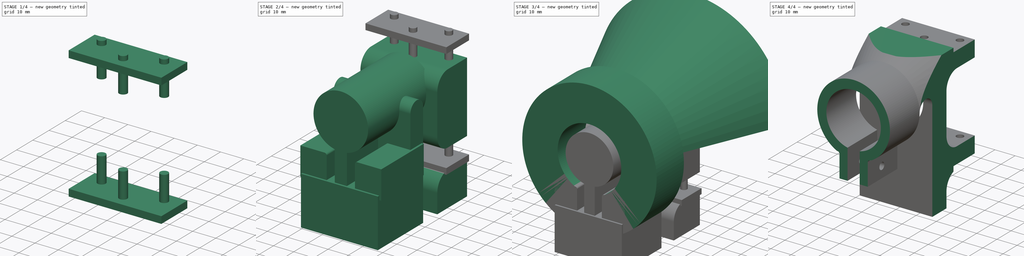
[diagram: build sequence overview — one tinted view per stage of 4, left to right]
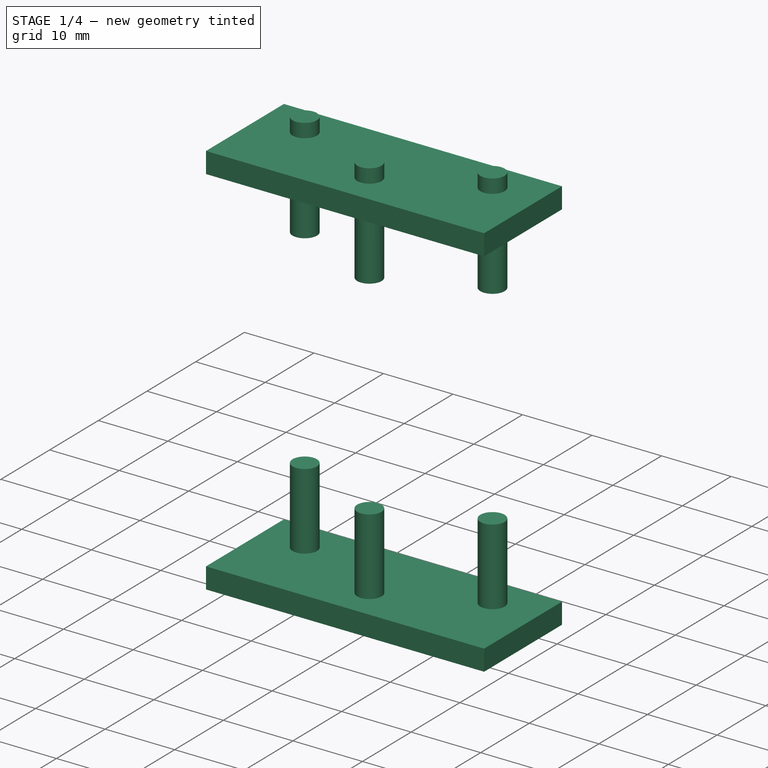
[diagram: stage 1 of 4 — iso view after this stage's code; geometry added in this stage tinted green]
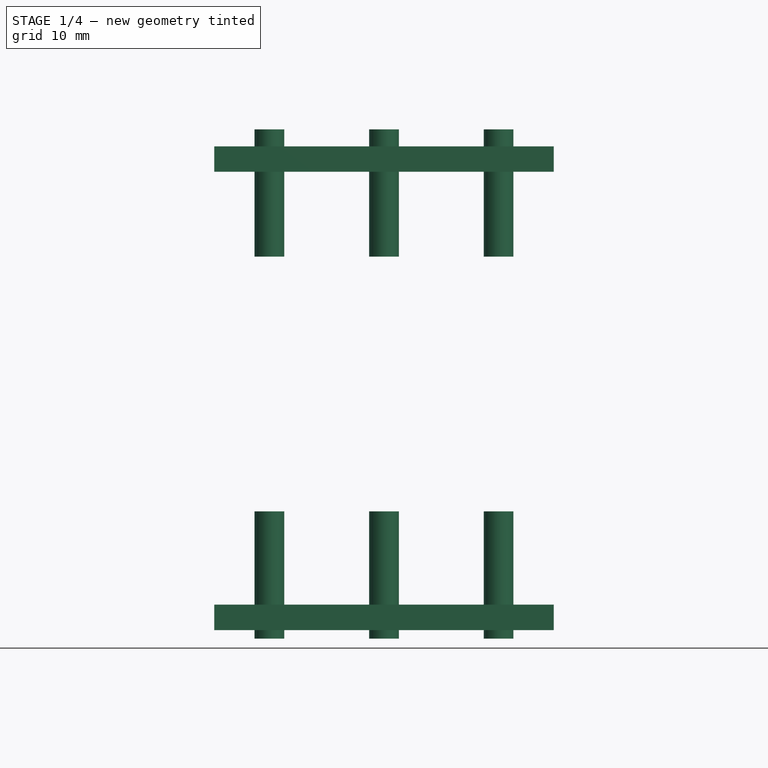
[diagram: stage 1 of 4 — front view after this stage's code; geometry added in this stage tinted green]
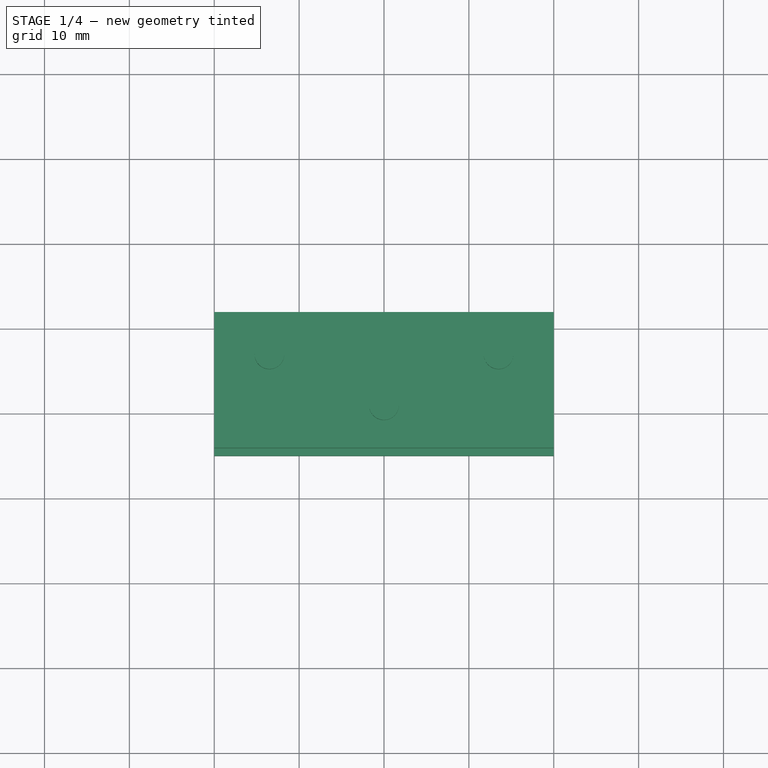
[diagram: stage 1 of 4 — top view after this stage's code; geometry added in this stage tinted green]
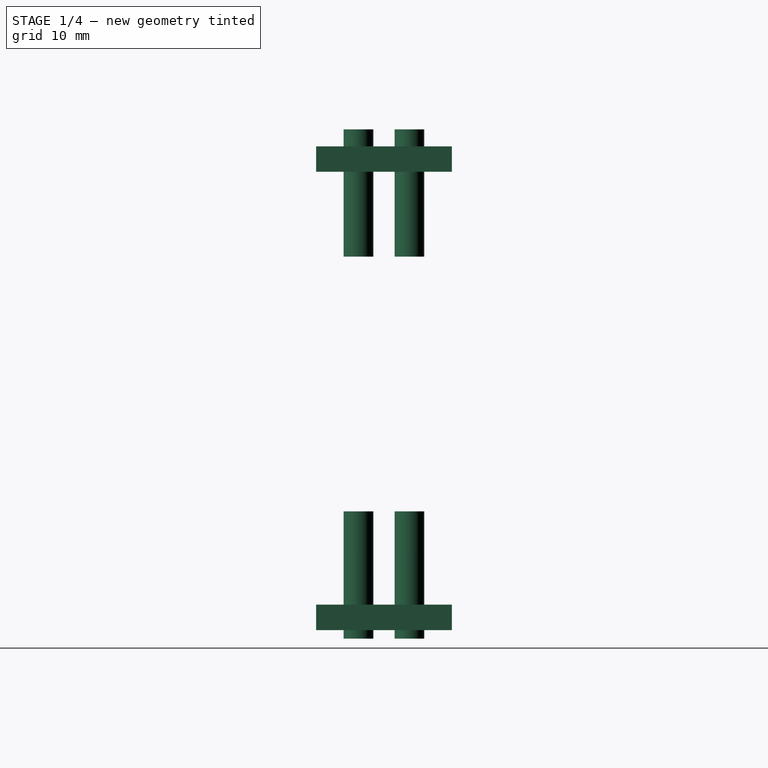
[diagram: stage 1 of 4 — right view after this stage's code; geometry added in this stage tinted green]
FCSTD DOCUMENT  (FreeCAD 0.16R6698 (Git))
Label: body-bracket2
License: All rights reserved
LicenseURL: http://en.wikipedia.org/wiki/All_rights_reserved
objects: Sketcher::SketchObject×9, Part::Extrusion×7, Part::Sweep×2, Part::MultiFuse×2, Part::Cut×2, Part::Box×1
note: 23 computed .brp shape members not serialized (recipe doc carries the construction recipe); baked Part::Feature solids carry a one-line shape summary decoded from their .brp

FEATURE [Sketcher::SketchObject] Sketch020
  sketch-geometry (4):
    g0: LineSegment StartX=-20 StartY=61 StartZ=0 EndX=20 EndY=61 EndZ=0
    g1: LineSegment StartX=20 StartY=61 StartZ=0 EndX=20 EndY=45 EndZ=0
    g2: LineSegment StartX=20 StartY=45 StartZ=0 EndX=-20 EndY=45 EndZ=0
    g3: LineSegment StartX=-20 StartY=45 StartZ=0 EndX=-20 EndY=61 EndZ=0
  constraints (12):
    c: Coincident(g0,g1)
    c: Coincident(g1,g2)
    c: Coincident(g2,g3)
    c: Coincident(g3,g0)
    c: Horizontal(g0)
    c: Horizontal(g2)
    c: Vertical(g1)
    c: Vertical(g3)
    c: DistanceY(g-1,g1) = 45
    c: Symmetric(g1,g2,g-2)
    c: DistanceY(g-1,g0) = 61
    c: DistanceX(g0,g0) = 40
FEATURE [Part::Extrusion] Extrude003
  Base = -> Sketch020
  Dir = (0,0,3)
  Placement = pos=(0,0,68) rot=(0,0,1;0rad)
  Solid = true
FEATURE [Part::Extrusion] Extrude004
  Base = -> Sketch020
  Dir = (0,0,3)
  Placement = pos=(0,0,14) rot=(0,0,1;0rad)
  Solid = true
FEATURE [Sketcher::SketchObject] Sketch021
  sketch-geometry (6):
    g0: Circle CenterX=-13.5 CenterY=56 CenterZ=0 NormalX=0 NormalY=0 NormalZ=1 Radius=1.75
    g1: Circle CenterX=13.5 CenterY=56 CenterZ=0 NormalX=0 NormalY=0 NormalZ=1 Radius=1.75
    g2: Circle CenterX=0 CenterY=50 CenterZ=0 NormalX=0 NormalY=0 NormalZ=1 Radius=1.75
    g3: LineSegment [constr] StartX=-13.5 StartY=56 StartZ=0 EndX=0 EndY=50 EndZ=0
    g4: LineSegment [constr] StartX=0 StartY=50 StartZ=0 EndX=13.5 EndY=56 EndZ=0
    g5: LineSegment [constr] StartX=13.5 StartY=56 StartZ=0 EndX=-13.5 EndY=56 EndZ=0
  constraints (15):
    c: Radius(g2) = 1.75
    c: PointOnObject(g2,g-2)
    c: Coincident(g3,g0)
    c: Coincident(g3,g2)
    c: Coincident(g3,g4)
    c: Coincident(g4,g1)
    c: Coincident(g4,g5)
    c: Horizontal(g5)
    c: Coincident(g5,g0)
    c: Equal(g3,g4)
    c: DistanceY(g2,g1) = 6
    c: DistanceX(g0,g1) = 27
    c: DistanceY(g-1,g1) = 56
    c: Equal(g0,g2)
    c: Equal(g2,g1)
FEATURE [Part::Extrusion] Extrude005
  Base = -> Sketch021
  Dir = (0,0,15)
  Placement = pos=(0,0,13) rot=(0,0,1;0rad)
  Solid = true
FEATURE [Part::Extrusion] Extrude006
  Base = -> Sketch021
  Dir = (0,0,15)
  Placement = pos=(0,0,58) rot=(0,0,1;0rad)
  Solid = true
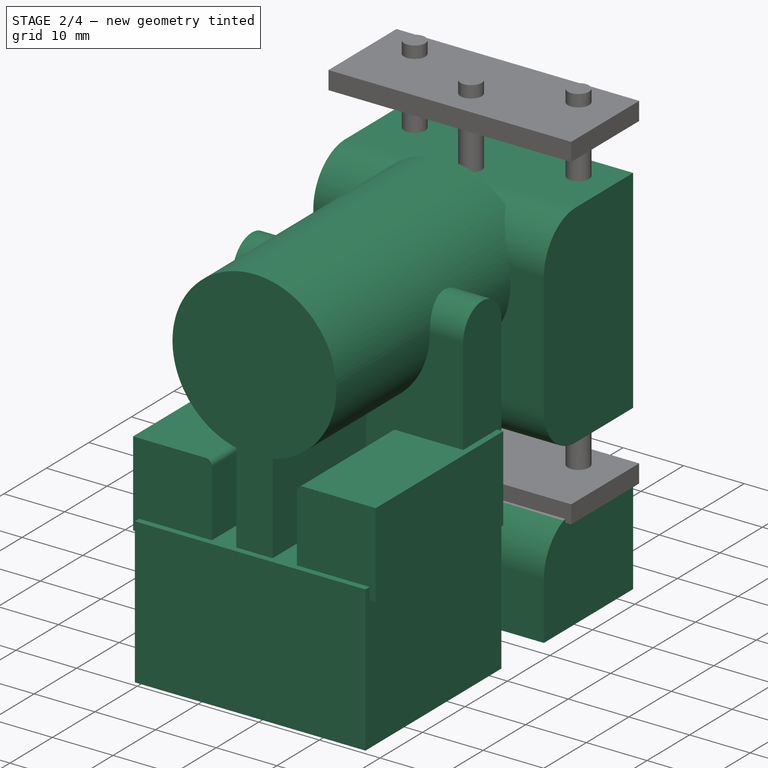
[diagram: stage 2 of 4 — iso view after this stage's code; geometry added in this stage tinted green]
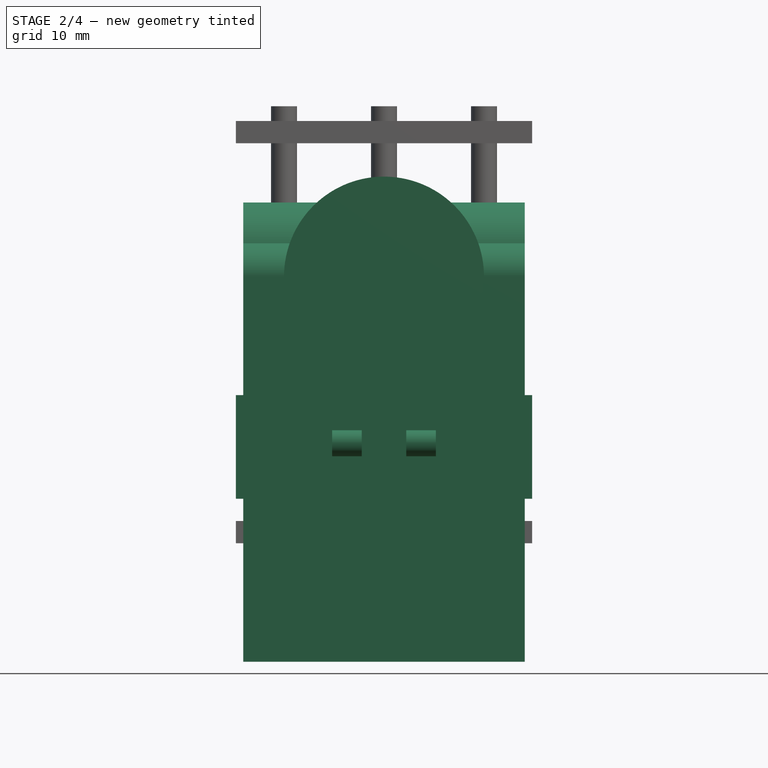
[diagram: stage 2 of 4 — front view after this stage's code; geometry added in this stage tinted green]
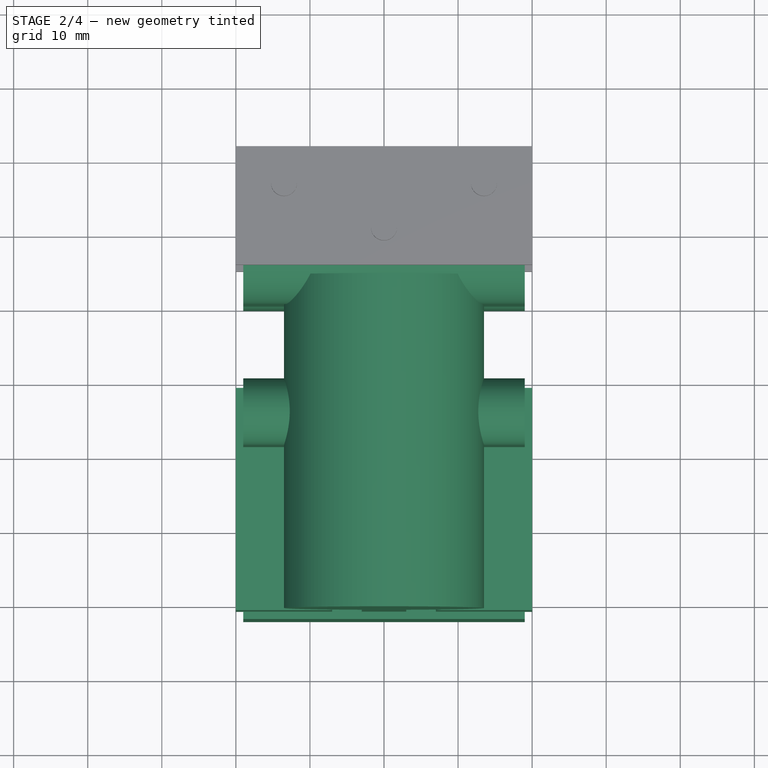
[diagram: stage 2 of 4 — top view after this stage's code; geometry added in this stage tinted green]
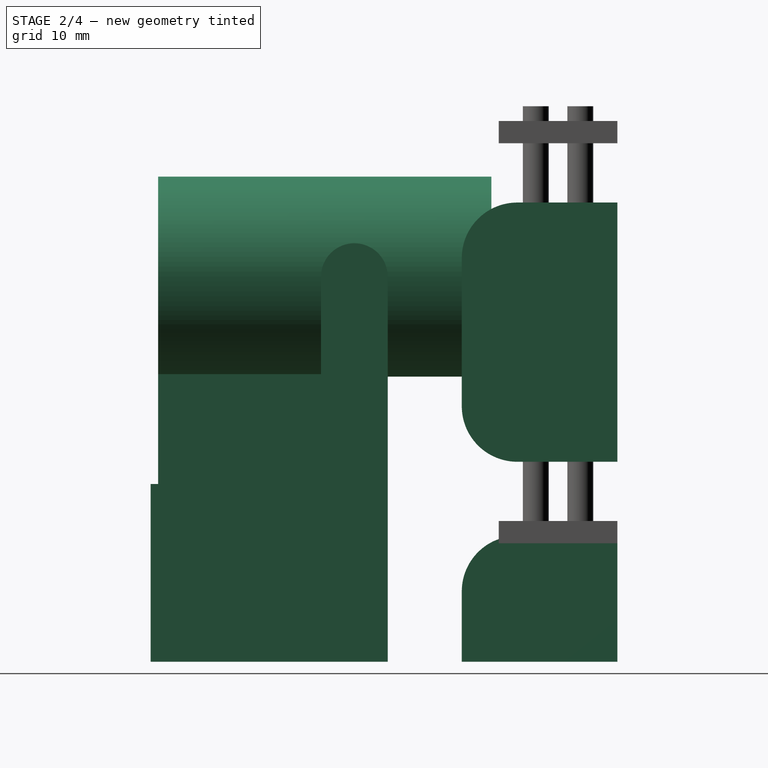
[diagram: stage 2 of 4 — right view after this stage's code; geometry added in this stage tinted green]
FEATURE [Sketcher::SketchObject] Sketch  label="side-cut"
  Placement = pos=(0,0,0) rot=(0.57735,0.57735,0.57735;2.0944rad)
  sketch-geometry (19):
    g0: LineSegment StartX=61 StartY=60 StartZ=0 EndX=47.5 EndY=60 EndZ=0
    g1: LineSegment StartX=40 StartY=52.5 StartZ=0 EndX=40 EndY=32.5 EndZ=0
    g2: LineSegment StartX=47.5 StartY=25 StartZ=0 EndX=61 EndY=25 EndZ=0
    g3: LineSegment StartX=61 StartY=25 StartZ=0 EndX=61 EndY=60 EndZ=0
    g4: LineSegment StartX=61 StartY=15 StartZ=0 EndX=47.5 EndY=15 EndZ=0
    g5: LineSegment StartX=40 StartY=7.5 StartZ=0 EndX=40 EndY=-2 EndZ=0
    g6: LineSegment StartX=40 StartY=-2 StartZ=0 EndX=61 EndY=-2 EndZ=0
    g7: LineSegment StartX=61 StartY=-2 StartZ=0 EndX=61 EndY=15 EndZ=0
    g8: ArcOfCircle CenterX=47.5 CenterY=7.5 CenterZ=0 NormalX=0 NormalY=0 NormalZ=1 Radius=7.5 StartAngle=1.5708 EndAngle=3.14159
    g9: ArcOfCircle CenterX=47.5 CenterY=52.5 CenterZ=0 NormalX=0 NormalY=0 NormalZ=1 Radius=7.5 StartAngle=1.5708 EndAngle=3.14159
    g10: ArcOfCircle CenterX=47.5 CenterY=32.5 CenterZ=0 NormalX=0 NormalY=0 NormalZ=1 Radius=7.5 StartAngle=3.14159 EndAngle=4.71239
    g11: LineSegment [constr] StartX=21 StartY=50 StartZ=0 EndX=30 EndY=50 EndZ=0
    g12: LineSegment StartX=30 StartY=50 StartZ=0 EndX=30 EndY=-2 EndZ=0
    g13: LineSegment StartX=30 StartY=-2 StartZ=0 EndX=-2 EndY=-2 EndZ=0
    g14: LineSegment StartX=-2 StartY=-2 StartZ=0 EndX=-2 EndY=22 EndZ=0
    g15: LineSegment StartX=-2 StartY=22 StartZ=0 EndX=21 EndY=22 EndZ=0
    g16: LineSegment StartX=21 StartY=22 StartZ=0 EndX=21 EndY=50 EndZ=0
    g17: ArcOfCircle CenterX=25.5 CenterY=50 CenterZ=0 NormalX=0 NormalY=0 NormalZ=1 Radius=4.5 StartAngle=0 EndAngle=3.14159
    g18: Circle CenterX=10 CenterY=27.5 CenterZ=0 NormalX=0 NormalY=0 NormalZ=1 Radius=1.75
  constraints (54):
    c: Coincident(g2,g3)
    c: Coincident(g3,g0)
    c: Horizontal(g0)
    c: Horizontal(g2)
    c: Vertical(g1)
    c: Vertical(g3)
    c: Coincident(g5,g6)
    c: Coincident(g6,g7)
    c: Coincident(g7,g4)
    c: Horizontal(g4)
    c: Horizontal(g6)
    c: Vertical(g5)
    c: Vertical(g7)
    c: Tangent(g4,g8) = -1.5708
    c: Tangent(g5,g8) = -1.5708
    c: Tangent(g0,g9) = -1.5708
    c: Tangent(g1,g9) = -1.5708
    c: Tangent(g1,g10) = -1.5708
    c: Tangent(g2,g10) = -1.5708
    c: Radius(g8) = 7.5
    c: Equal(g8,g10)
    c: Equal(g10,g9)
    c: DistanceY(g-1,g4) = 15
    c: DistanceX(g-1,g5) = 40
    c: PointOnObject(g1,g5)
    c: Equal(g2,g4)
    c: DistanceX(g-1,g6) = 61
    c: DistanceY(g-1,g0) = 60
    c: DistanceY(g-1,g2) = 25
    c: DistanceY(g6,g-1) = 2
    c: Coincident(g11,g12)
    c: Coincident(g12,g13)
    c: Horizontal(g11)
    c: Horizontal(g13)
    c: Vertical(g12)
    c: DistanceX(g-1,g12) = 30
    c: PointOnObject(g12,g6)
    c: Vertical(g14)
    c: Coincident(g14,g15)
    c: Horizontal(g15)
    c: Coincident(g15,g16)
    c: Vertical(g16)
    c: DistanceX(g-1,g11) = 21
    c: Coincident(g16,g11)
    c: DistanceX(g13,g-1) = 2
    c: Coincident(g14,g13)
    c: DistanceY(g-1,g15) = 22
    c: DistanceY(g-1,g11) = 50
    c: PointOnObject(g17,g11)
    c: Coincident(g17,g11)
    c: Coincident(g17,g11)
    c: Radius(g18) = 1.75
    c: DistanceY(g14,g18) = 5.5
    c: DistanceX(g-1,g18) = 10
FEATURE [Part::Extrusion] Extrude  label="Extrude-side-cut"
  Base = -> Sketch
  Dir = (38,0,0)
  Placement = pos=(-19,0,0) rot=(0,0,1;0rad)
  Solid = true
FEATURE [Sketcher::SketchObject] Sketch016  label="tube-hole"
  Placement = pos=(0,0,0) rot=(1,0,0;1.5708rad)
  sketch-geometry (1):
    g0: Circle CenterX=0 CenterY=50 CenterZ=0 NormalX=0 NormalY=0 NormalZ=1 Radius=13.5
  constraints (3):
    c: PointOnObject(g0,g-2)
    c: Radius(g0) = 13.5
    c: DistanceY(g-1,g0) = 50
FEATURE [Part::Extrusion] Extrude001  label="Extrude-tube-hole"
  Base = -> Sketch016
  Dir = (0,45,0)
  Placement = pos=(0,-1,0) rot=(0,0,1;0rad)
  Solid = true
FEATURE [Sketcher::SketchObject] Sketch017  label="arc-ext001"
  Placement = pos=(0,0,0) rot=(1,0,0;1.5708rad)
  sketch-geometry (14):
    g0: LineSegment StartX=8 StartY=34 StartZ=0 EndX=20 EndY=34 EndZ=0
    g1: LineSegment StartX=20 StartY=34 StartZ=0 EndX=20 EndY=20 EndZ=0
    g2: LineSegment StartX=20 StartY=20 StartZ=0 EndX=7 EndY=20 EndZ=0
    g3: LineSegment StartX=7 StartY=20 StartZ=0 EndX=7 EndY=33 EndZ=0
    g4: ArcOfCircle CenterX=8 CenterY=33 CenterZ=0 NormalX=0 NormalY=0 NormalZ=1 Radius=1 StartAngle=1.5708 EndAngle=3.14159
    g5: LineSegment StartX=-8 StartY=34 StartZ=0 EndX=-20 EndY=34 EndZ=0
    g6: LineSegment StartX=-20 StartY=34 StartZ=0 EndX=-20 EndY=20 EndZ=0
    g7: LineSegment StartX=-20 StartY=20 StartZ=0 EndX=-7 EndY=20 EndZ=0
    g8: LineSegment StartX=-7 StartY=20 StartZ=0 EndX=-7 EndY=33 EndZ=0
    g9: ArcOfCircle CenterX=-8 CenterY=33 CenterZ=0 NormalX=0 NormalY=0 NormalZ=1 Radius=1 StartAngle=0 EndAngle=1.5708
    g10: LineSegment StartX=-3 StartY=40 StartZ=0 EndX=3 EndY=40 EndZ=0
    g11: LineSegment StartX=3 StartY=40 StartZ=0 EndX=3 EndY=15 EndZ=0
    g12: LineSegment StartX=3 StartY=15 StartZ=0 EndX=-3 EndY=15 EndZ=0
    g13: LineSegment StartX=-3 StartY=15 StartZ=0 EndX=-3 EndY=40 EndZ=0
  constraints (39):
    c: Coincident(g0,g1)
    c: Coincident(g1,g2)
    c: Coincident(g2,g3)
    c: Horizontal(g0)
    c: Horizontal(g2)
    c: Vertical(g1)
    c: Vertical(g3)
    c: Tangent(g0,g4) = 1.5708
    c: Tangent(g3,g4) = 1.5708
    c: Radius(g4) = 1
    c: DistanceX(g-1,g2) = 7
    c: DistanceX(g-1,g1) = 20
    c: DistanceY(g1) = 20
    c: DistanceY(g-1,g0) = 34
    c: Coincident(g5,g6)
    c: Coincident(g6,g7)
    c: Coincident(g7,g8)
    c: Horizontal(g5)
    c: Horizontal(g7)
    c: Vertical(g6)
    c: Vertical(g8)
    c: Tangent(g5,g9) = -1.5708
    c: Tangent(g8,g9) = -1.5708
    c: Symmetric(g2,g7,g-2)
    c: Equal(g7,g2)
    c: Equal(g6,g1)
    c: Equal(g9,g4)
    c: Coincident(g10,g11)
    c: Coincident(g11,g12)
    c: Coincident(g12,g13)
    c: Coincident(g13,g10)
    c: Horizontal(g10)
    c: Horizontal(g12)
    c: Vertical(g11)
    c: Vertical(g13)
    c: Symmetric(g11,g12,g-2)
    c: DistanceX(g11,g2) = 4
    c: DistanceY(g-1,g11) = 15
    c: DistanceY(g-1,g10) = 40
FEATURE [Part::Extrusion] Extrude002  label="arc-ext"
  Base = -> Sketch017
  Dir = (0,30,0)
  Placement = pos=(0,-1,0) rot=(0,0,1;0rad)
  Solid = true
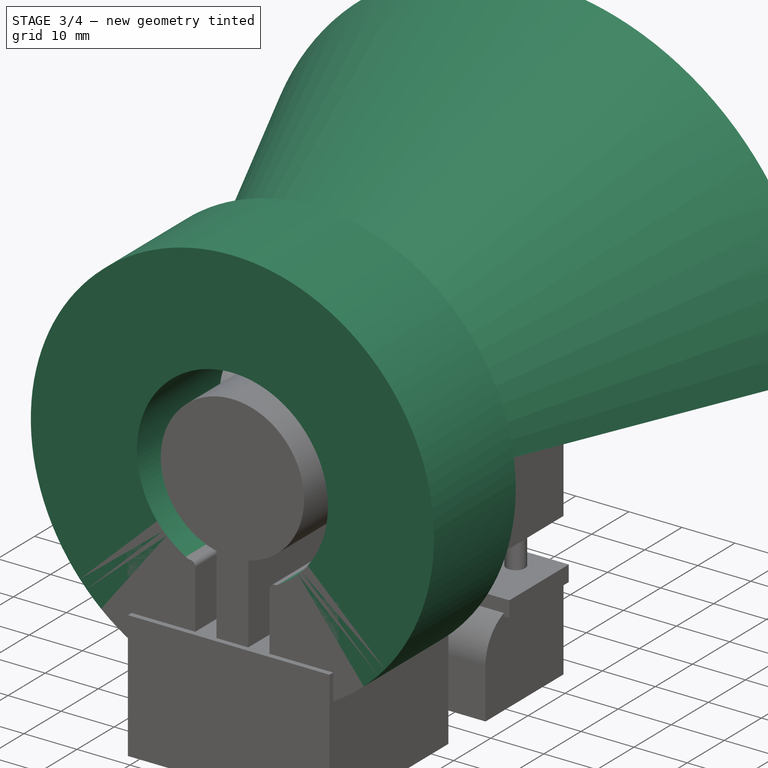
[diagram: stage 3 of 4 — iso view after this stage's code; geometry added in this stage tinted green]
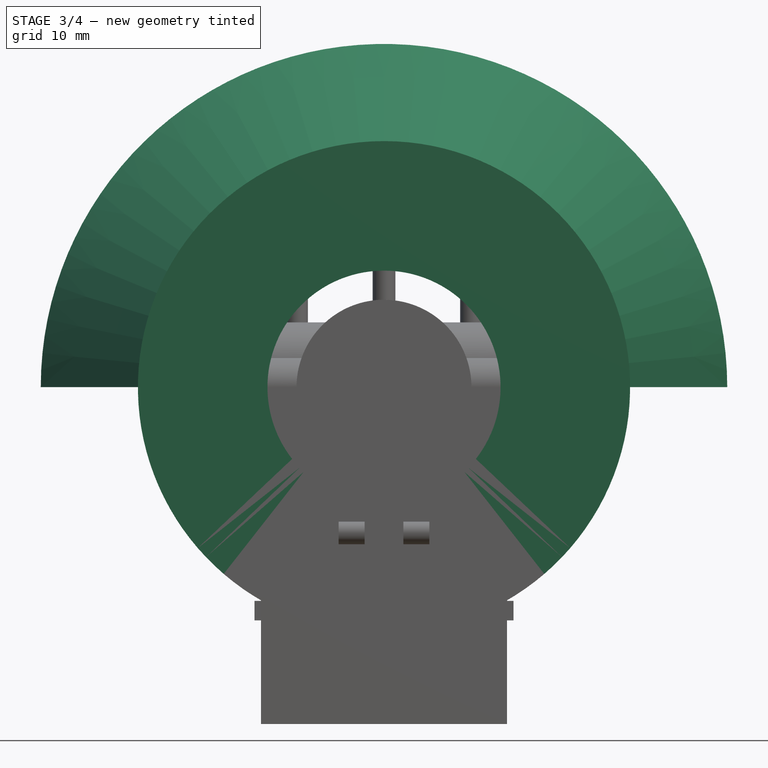
[diagram: stage 3 of 4 — front view after this stage's code; geometry added in this stage tinted green]
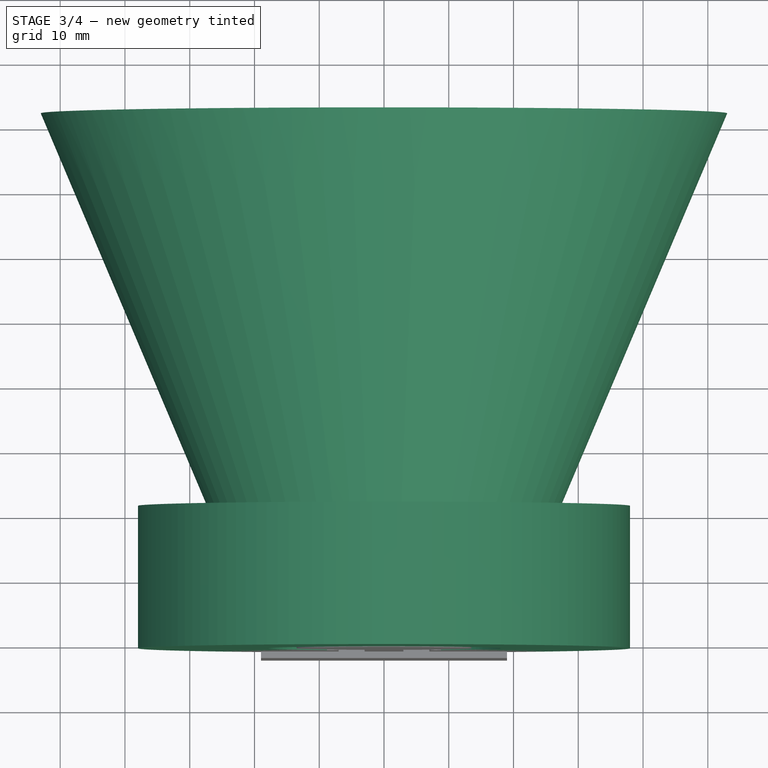
[diagram: stage 3 of 4 — top view after this stage's code; geometry added in this stage tinted green]
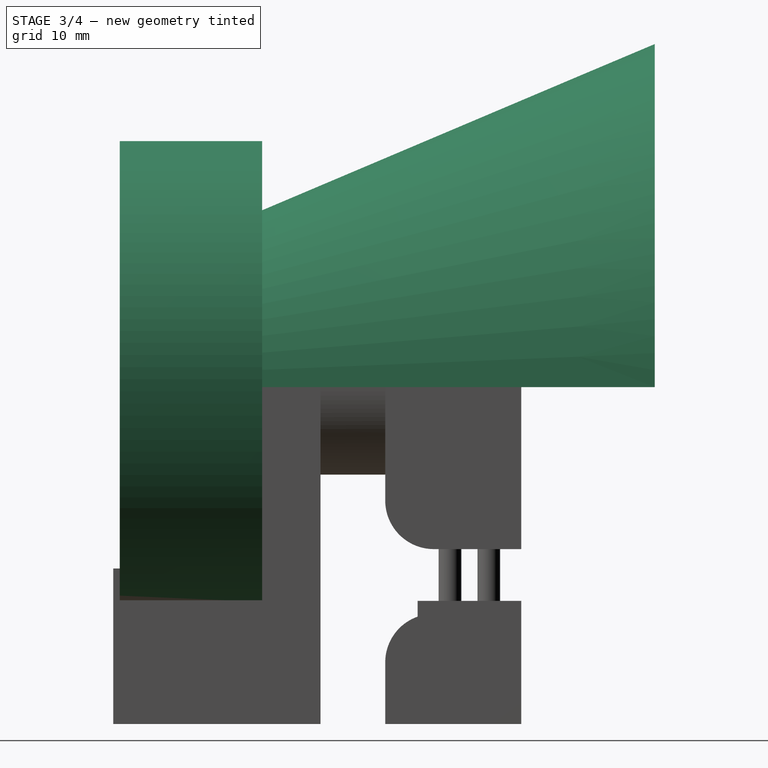
[diagram: stage 3 of 4 — right view after this stage's code; geometry added in this stage tinted green]
FEATURE [Sketcher::SketchObject] Sketch014  label="outer-tube-cut"
  Placement = pos=(0,-1,0) rot=(0.57735,0.57735,0.57735;2.0944rad)
  sketch-geometry (4):
    g0: LineSegment StartX=22 StartY=68 StartZ=0 EndX=0 EndY=68 EndZ=0
    g1: LineSegment StartX=0 StartY=68 StartZ=0 EndX=0 EndY=88 EndZ=0
    g2: LineSegment StartX=0 StartY=88 StartZ=0 EndX=22 EndY=88 EndZ=0
    g3: LineSegment StartX=22 StartY=68 StartZ=0 EndX=22 EndY=88 EndZ=0
  constraints (13):
    c: Coincident(g0,g1)
    c: Horizontal(g0)
    c: Vertical(g1)
    c: DistanceX(g0,g0) = 22
    c: DistanceY(g-1,g0) = 68
    c: PointOnObject(g0,g-2)
    c: PointOnObject(g2,g-2)
    c: Horizontal(g2)
    c: DistanceY(g0,g2) = 20
    c: Coincident(g1,g2)
    c: Coincident(g3,g0)
    c: Vertical(g3)
    c: Coincident(g2,g3)
FEATURE [Sketcher::SketchObject] Sketch015  label="outer-tube-cut-path"
  Placement = pos=(0,0,0) rot=(1,0,0;1.5708rad)
  sketch-geometry (3):
    g0: ArcOfCircle CenterX=0 CenterY=50 CenterZ=0 NormalX=0 NormalY=0 NormalZ=1 Radius=10 StartAngle=5.12391 EndAngle=10.5841
    g1: LineSegment [constr] StartX=-4 StartY=40.8348 StartZ=0 EndX=4 EndY=40.8348 EndZ=0
    g2: GeomPoint [constr] X=0 Y=50 Z=0
  constraints (8):
    c: Radius(g0) = 10
    c: Coincident(g1,g0)
    c: Horizontal(g1)
    c: Distance(g1) = 8
    c: Coincident(g0,g1)
    c: DistanceY(g-1,g2) = 50
    c: PointOnObject(g2,g-2)
    c: Coincident(g0,g2)
FEATURE [Part::Sweep] Sweep
  Frenet = false
  Sections = -> [Sketch014]
  Solid = true
  Spine = -> Sketch015 [Edge1]
  Transition = 1
FEATURE [Sketcher::SketchObject] Sketch018  label="body-round-cut"
  Placement = pos=(0,-1,0) rot=(0.57735,0.57735,0.57735;2.0944rad)
  sketch-geometry (3):
    g0: LineSegment StartX=22 StartY=68 StartZ=0 EndX=0 EndY=68 EndZ=0
    g1: LineSegment StartX=22 StartY=68 StartZ=0 EndX=82.6218 EndY=103 EndZ=0
    g2: LineSegment StartX=0 StartY=68 StartZ=0 EndX=82.6218 EndY=103 EndZ=0
  constraints (9):
    c: Horizontal(g0)
    c: DistanceX(g0,g0) = 22
    c: DistanceY(g-1,g0) = 68
    c: PointOnObject(g0,g-2)
    c: Coincident(g1,g0)
    c: Coincident(g2,g0)
    c: Coincident(g2,g1)
    c: Angle(g1,g0) = 2.61799
    c: DistanceY(g0,g1) = 35
FEATURE [Sketcher::SketchObject] Sketch019  label="body-round-cut-path"
  Placement = pos=(0,0,0) rot=(1,0,0;1.5708rad)
  sketch-geometry (3):
    g0: ArcOfCircle CenterX=0 CenterY=50 CenterZ=0 NormalX=0 NormalY=0 NormalZ=1 Radius=10 StartAngle=0 EndAngle=3.14159
    g1: LineSegment [constr] StartX=-10 StartY=50 StartZ=0 EndX=10 EndY=50 EndZ=0
    g2: GeomPoint [constr] X=0 Y=50 Z=0
  constraints (8):
    c: Radius(g0) = 10
    c: Coincident(g1,g0)
    c: Horizontal(g1)
    c: Coincident(g0,g1)
    c: DistanceY(g-1,g2) = 50
    c: PointOnObject(g2,g-2)
    c: Coincident(g0,g2)
    c: PointOnObject(g0,g1)
FEATURE [Part::Sweep] Sweep001
  Frenet = false
  Sections = -> [Sketch018]
  Solid = true
  Spine = -> Sketch019 [Edge1]
  Transition = 1
FEATURE [Part::MultiFuse] Fusion001
  Shapes = -> [Extrude,Extrude005,Extrude003,Extrude001,Extrude002,Extrude006,Extrude004]
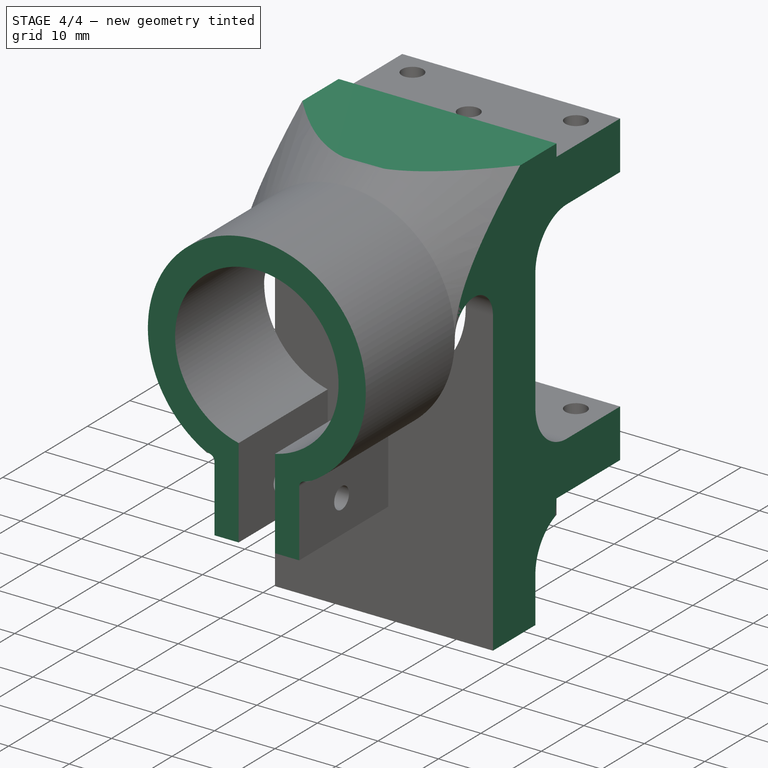
[diagram: stage 4 of 4 — iso view after this stage's code; geometry added in this stage tinted green]
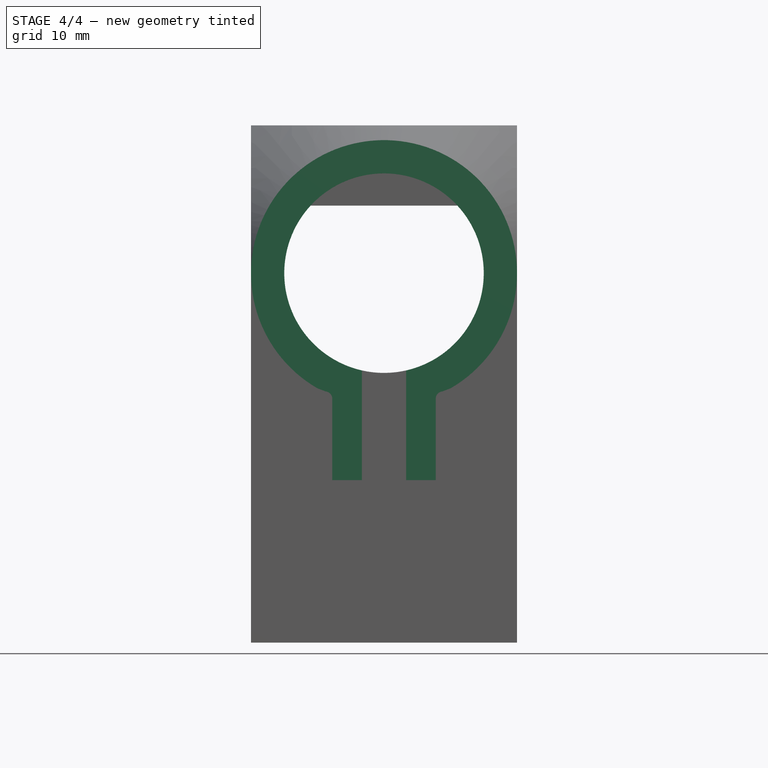
[diagram: stage 4 of 4 — front view after this stage's code; geometry added in this stage tinted green]
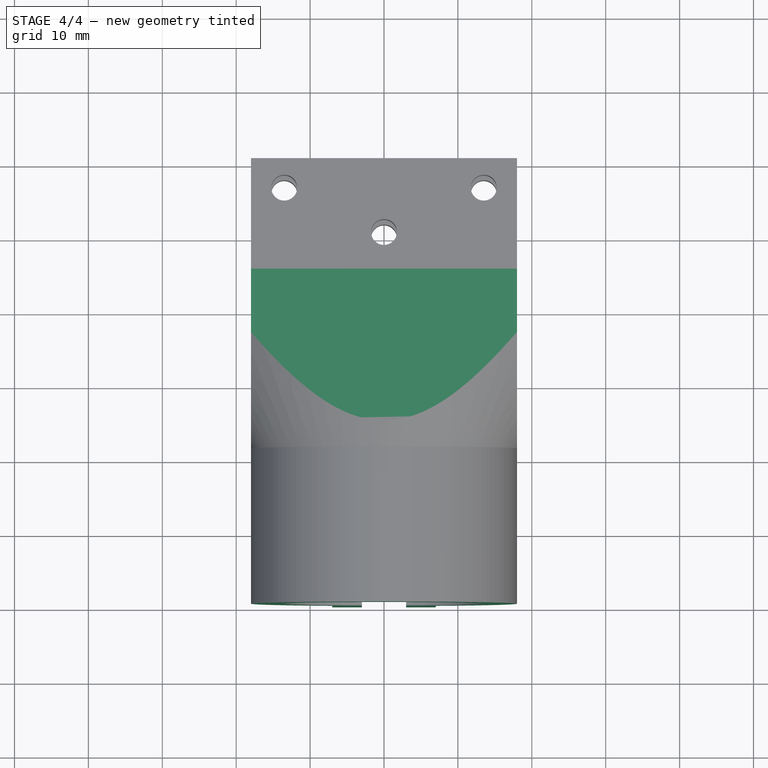
[diagram: stage 4 of 4 — top view after this stage's code; geometry added in this stage tinted green]
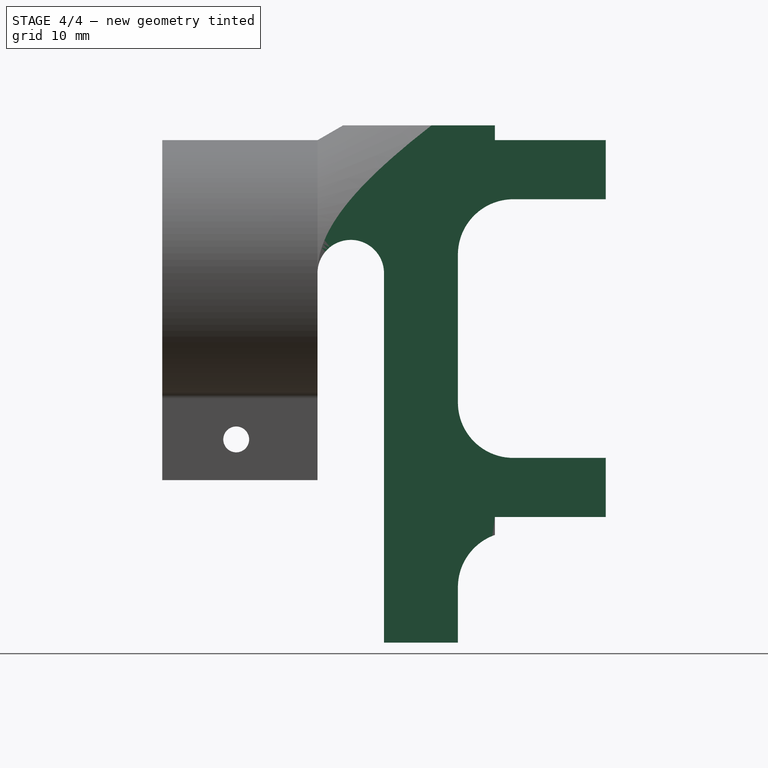
[diagram: stage 4 of 4 — right view after this stage's code; geometry added in this stage tinted green]
FEATURE [Part::Box] Box  label="Cube"
  Height = 70
  Length = 36
  Placement = pos=(-18,0,0) rot=(0,0,1;0rad)
  Width = 60
FEATURE [Part::MultiFuse] Fusion
  Shapes = -> [Sweep001,Sweep]
FEATURE [Part::Cut] Cut
  Base = -> Box
  Tool = -> Fusion
FEATURE [Part::Cut] Cut001
  Base = -> Cut
  Tool = -> Fusion001
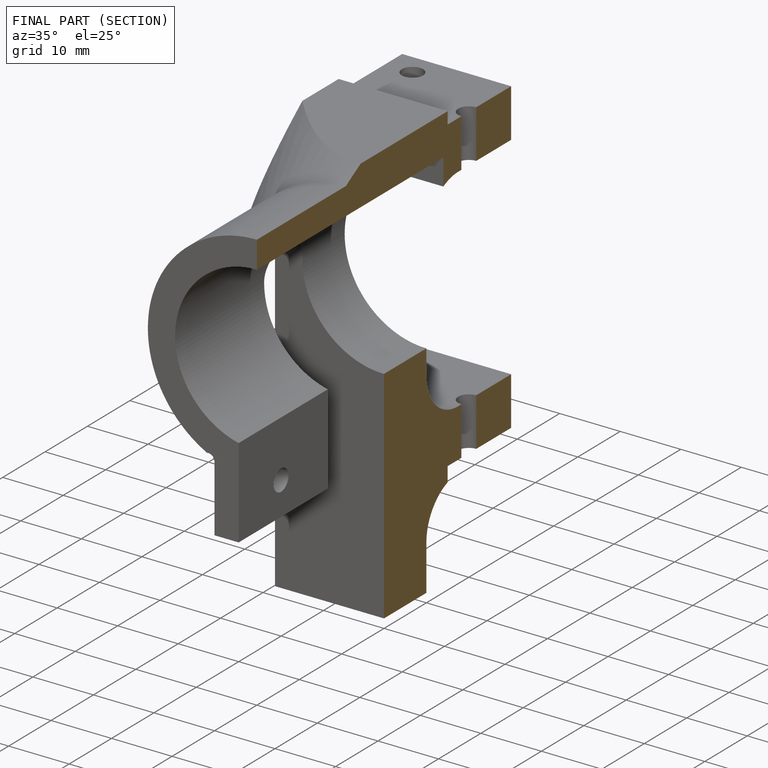
[diagram: finished part — half-section view (interior)]
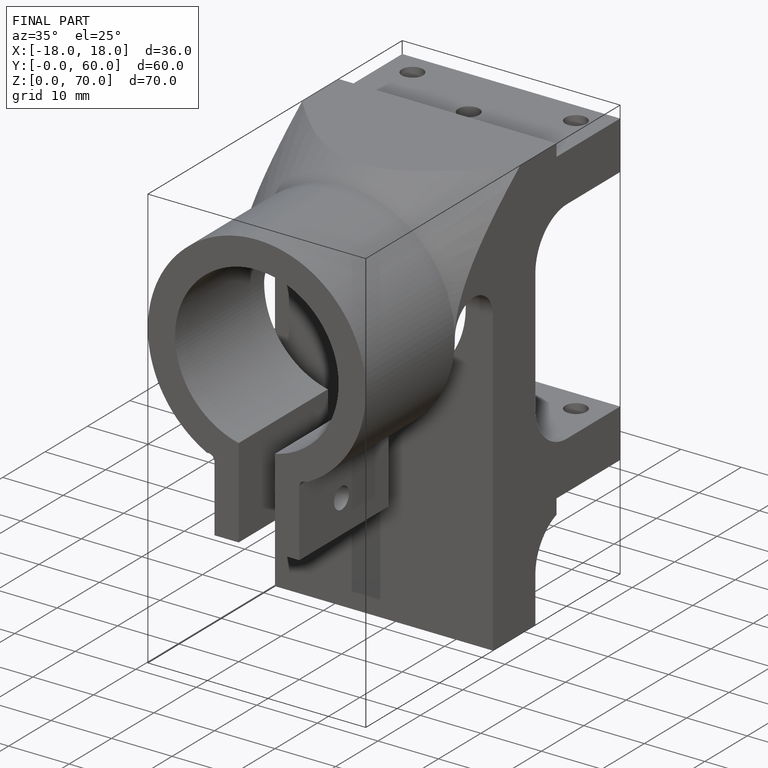
[diagram: finished part — iso view with bounding-box wireframe]
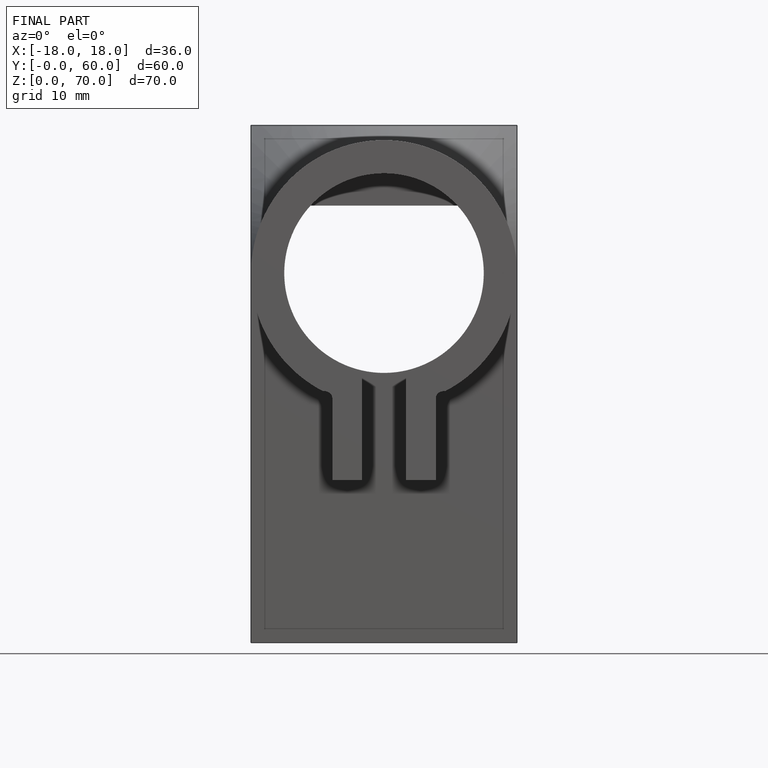
[diagram: finished part — front view with bounding-box wireframe]
